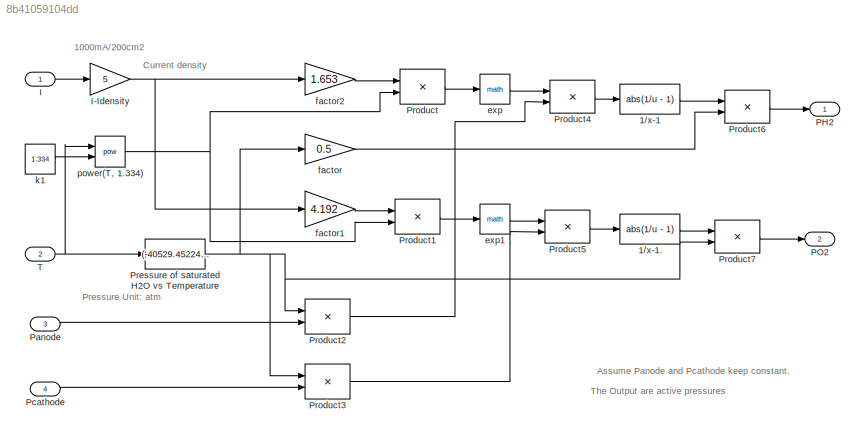
MODEL slx_8b41059104dd
KIND model
CONFIG AbsTol = auto
CONFIG EnableMultiTasking = off
CONFIG FixedStep = auto
CONFIG MaxStep = auto
CONFIG MinStep = auto
CONFIG RelTol = 1e-3
CONFIG SampleTimeConstraint = Unconstrained
CONFIG Solver = ode8
CONFIG SolverName = ode8
CONFIG StartTime = 0.0
CONFIG StopTime = 10.0
BLOCK [Fcn] 1//x-1
  Expr = abs(1/u - 1)
BLOCK [Fcn] 1//x-1.
  Expr = abs(1/u - 1)
BLOCK [Inport] I
BLOCK [Gain] I-Idensity
  Gain = 5
  OutDataTypeStr = Inherit: Same as input
  ParamDataTypeStr = Inherit: Same as input
  SaturateOnIntegerOverflow = on
BLOCK [Outport] PH2
BLOCK [Outport] PO2
  Port = 2
BLOCK [Inport] Panode
  Port = 3
BLOCK [Inport] Pcathode
  Port = 4
BLOCK [Fcn] Pressure of saturated H2O vs Temperature
  Expr = (-40529.4522405347 + 401.94033912153*u-1.33430273535993*(u^2) + 0.00148378443819808*(u^3))/760
BLOCK [Product] Product
  Inputs = */
  OutDataTypeStr = Inherit: Same as first input
  Ports = [2, 1]
  SaturateOnIntegerOverflow = on
BLOCK [Product] Product1
  Inputs = */
  OutDataTypeStr = Inherit: Same as first input
  Ports = [2, 1]
  SaturateOnIntegerOverflow = on
BLOCK [Product] Product2
  Inputs = */
  OutDataTypeStr = Inherit: Same as first input
  Ports = [2, 1]
  SaturateOnIntegerOverflow = on
BLOCK [Product] Product3
  Inputs = */
  OutDataTypeStr = Inherit: Same as first input
  Ports = [2, 1]
  SaturateOnIntegerOverflow = on
BLOCK [Product] Product4
  OutDataTypeStr = Inherit: Same as first input
  Ports = [2, 1]
  SaturateOnIntegerOverflow = on
BLOCK [Product] Product5
  OutDataTypeStr = Inherit: Same as first input
  Ports = [2, 1]
  SaturateOnIntegerOverflow = on
BLOCK [Product] Product6
  OutDataTypeStr = Inherit: Same as first input
  Ports = [2, 1]
  SaturateOnIntegerOverflow = on
BLOCK [Product] Product7
  OutDataTypeStr = Inherit: Same as first input
  Ports = [2, 1]
  SaturateOnIntegerOverflow = on
BLOCK [Inport] T
  Port = 2
BLOCK [Math] exp
  Ports = [1, 1]
  SignedPower = on
BLOCK [Math] exp1
  Ports = [1, 1]
  SignedPower = on
BLOCK [Gain] factor
  Gain = 0.5
  OutDataTypeStr = Inherit: Same as input
  ParamDataTypeStr = Inherit: Same as input
  SaturateOnIntegerOverflow = on
BLOCK [Gain] factor1
  Gain = 4.192
  OutDataTypeStr = Inherit: Same as input
  ParamDataTypeStr = Inherit: Same as input
  SaturateOnIntegerOverflow = on
BLOCK [Gain] factor2
  Gain = 1.653
  OutDataTypeStr = Inherit: Same as input
  ParamDataTypeStr = Inherit: Same as input
  SaturateOnIntegerOverflow = on
BLOCK [Constant] k1
  Value = 1.334
BLOCK [Math] power(T, 1.334)
  Operator = pow
  Ports = [2, 1]
  SignedPower = on
ANNOTATION (root): 1000mA/200cm2
ANNOTATION (root): Assume Panode and Pcathode keep constant.
ANNOTATION (root): Current density
ANNOTATION (root): Pressure Unit: atm
ANNOTATION (root): The Output are active pressures
LINE 1//x-1.:1 -> Product7:1
LINE 1//x-1:1 -> Product6:1
NET I-Idensity:1 -> factor1:1, factor2:1
LINE I:1 -> I-Idensity:1
LINE Panode:1 -> Product2:2
LINE Pcathode:1 -> Product3:2
NET Pressure of saturated H2O vs Temperature:1 -> Product2:1, Product3:1, Product7:2, factor:1
LINE Product1:1 -> exp1:1
LINE Product2:1 -> Product4:2
LINE Product3:1 -> Product5:2
LINE Product4:1 -> 1//x-1:1
LINE Product5:1 -> 1//x-1.:1
LINE Product6:1 -> PH2:1
LINE Product7:1 -> PO2:1
LINE Product:1 -> exp:1
NET T:1 -> Pressure of saturated H2O vs Temperature:1, power(T, 1.334):1
LINE exp1:1 -> Product5:1
LINE exp:1 -> Product4:1
LINE factor1:1 -> Product1:1
LINE factor2:1 -> Product:1
LINE factor:1 -> Product6:2
LINE k1:1 -> power(T, 1.334):2
NET power(T, 1.334):1 -> Product1:2, Product:2
note: NET lines group one-source signal fan-out (src -> all destinations, sorted); 1:1 wires keep LINE
